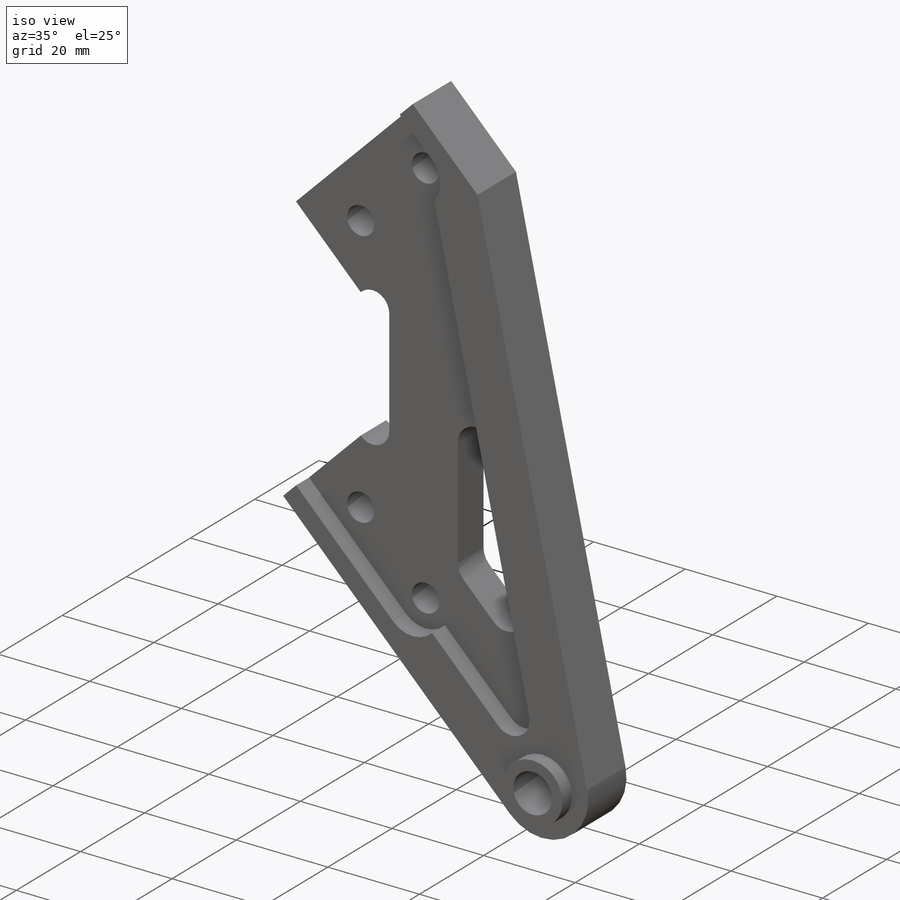
[diagram: iso view]
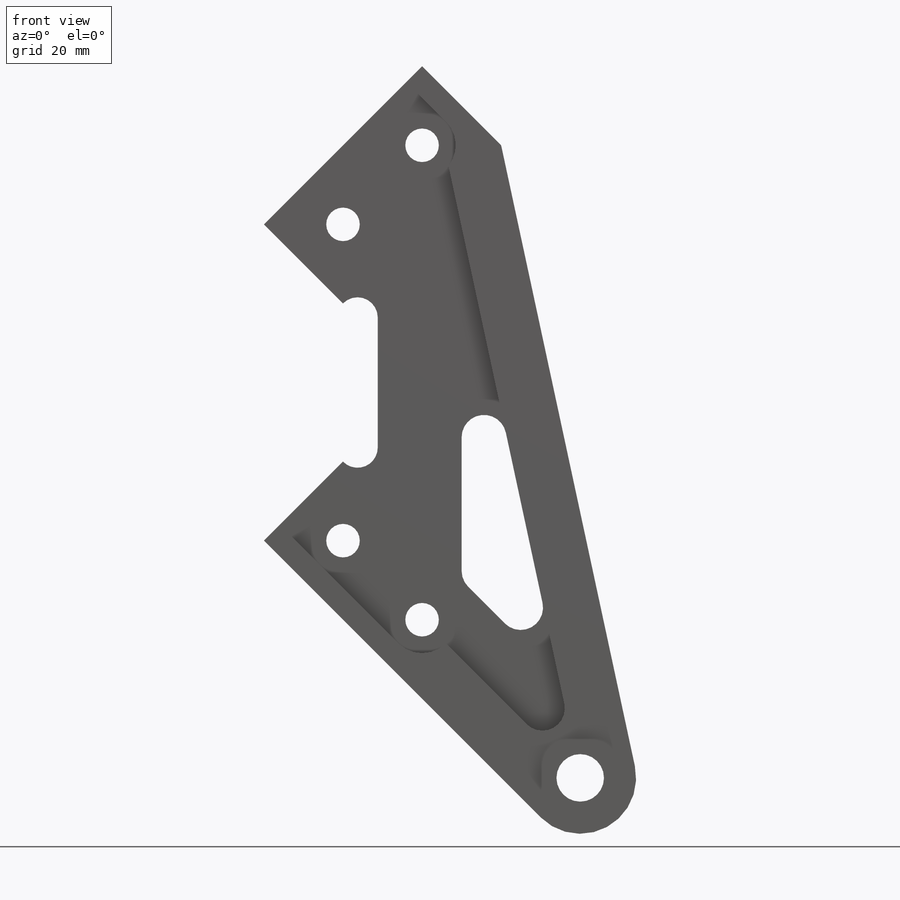
[diagram: front view]
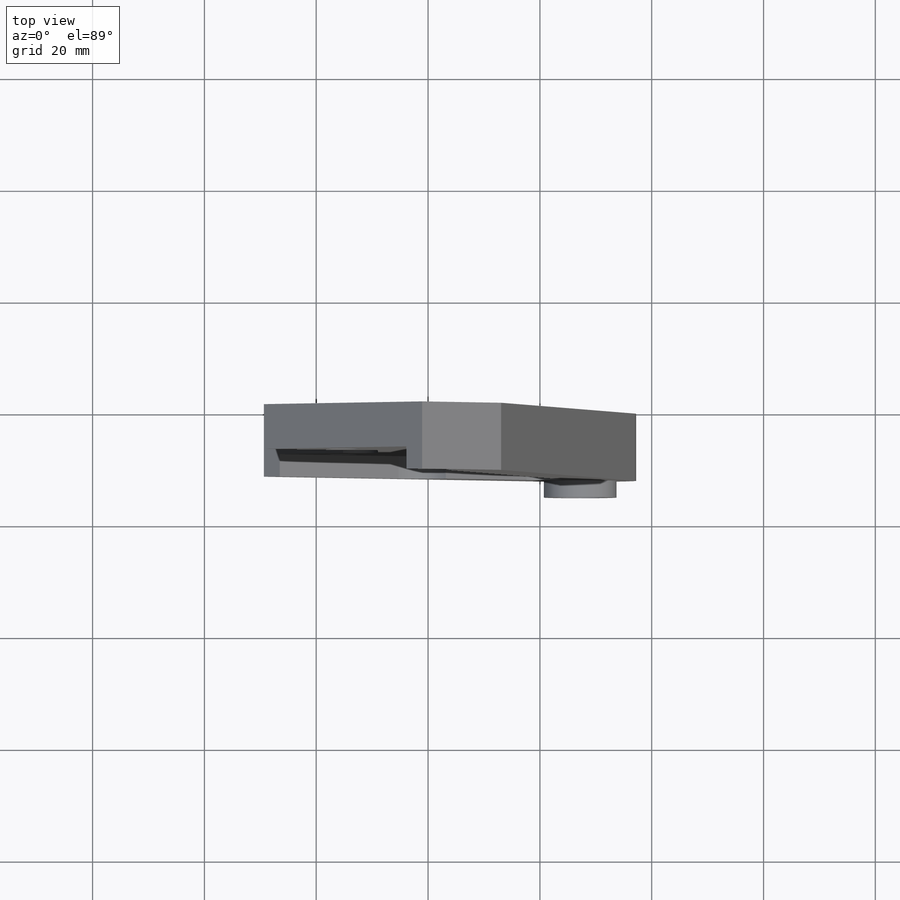
[diagram: top view]
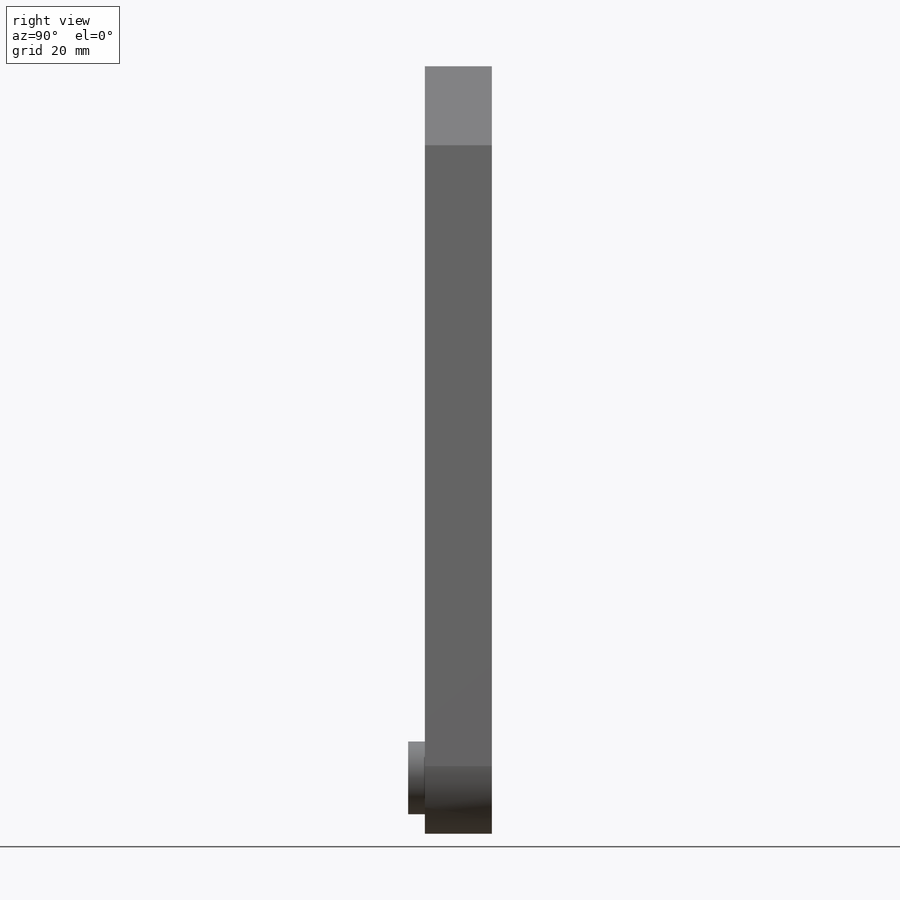
[diagram: right view]
SOLIDWORKS PART (.sldprt)
format: sldprt  version: not decoded by parser v0  size: 225,792 bytes
history: native  units: mm
features: sketch x3, extrude x3, material x1 (+11 scaffold rows collapsed)
feature tree (18):
  scaffold x11  (default folders/planes/origin — collapsed)
  material  "Material <not specified>"
  sketch  "Sketch1"  dims[c1.D8=6.0mm c1.D9=3.0mm c1.D12=8.5mm c1.D16=4.0mm c1.D1=20.0mm c1.D2=10.0mm c1.D3=20.0mm c1.D4=40.0mm c1.D5=~30.633195mm c2.D5=90.0deg c3.D5=70.0mm c3.D6=~51.355685mm c4.D6=~178.344355deg c5.D6=9.0mm c5.D7=18.0mm c5.D8=~79.571902mm c6.D8=~134.872178deg c6.D6=~28.347301mm c7.D6=45.0deg c7.D10=6.0mm c7.D11=70.0mm c8.D10=~0.058875mm c8.D13=70.0mm c8.D5=70.0mm c9.D13=~0.058875mm c9.D7=70.0mm c9.D9=9.0mm c9.D14=15.0mm c9.D15=10.0mm]
  extrude  "Boss-Extrude1"  Depth=8mm
  sketch  "Sketch2"  dims[D1=12.0mm D3=4.0mm D2=10.0mm]
  extrude  "Boss-Extrude2"  Depth=4mm
  sketch  "Sketch3"  dims[D1=13.0mm]
  extrude  "Boss-Extrude3"  Depth=3mm
decode coverage: 6 of 6 modeling features carry decoded parameters
note: ~ marks probable driven/reference dimensions
note: suppression state not decoded; provenance and decode notes live in map.json
